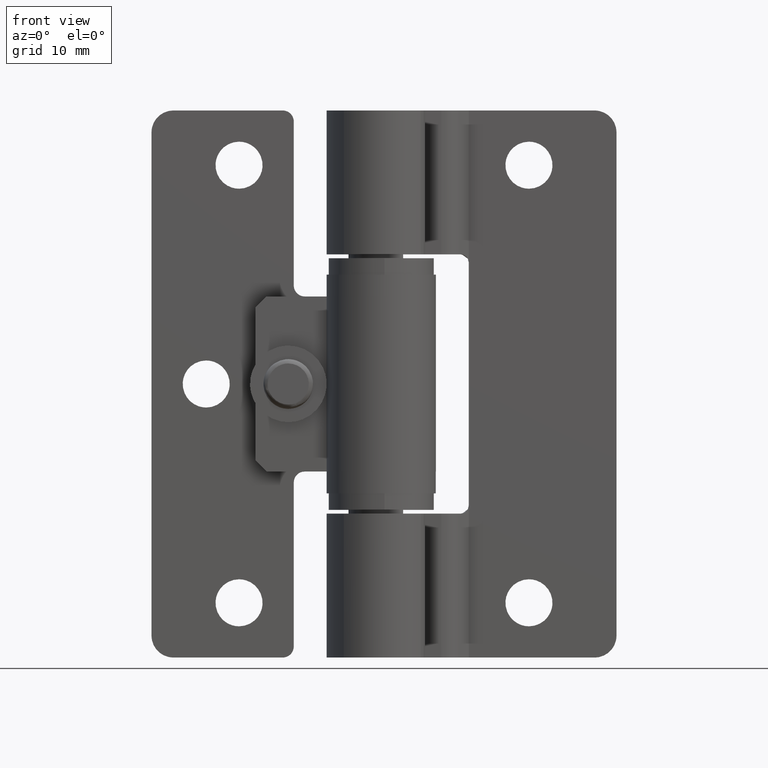
[diagram: clean part render]
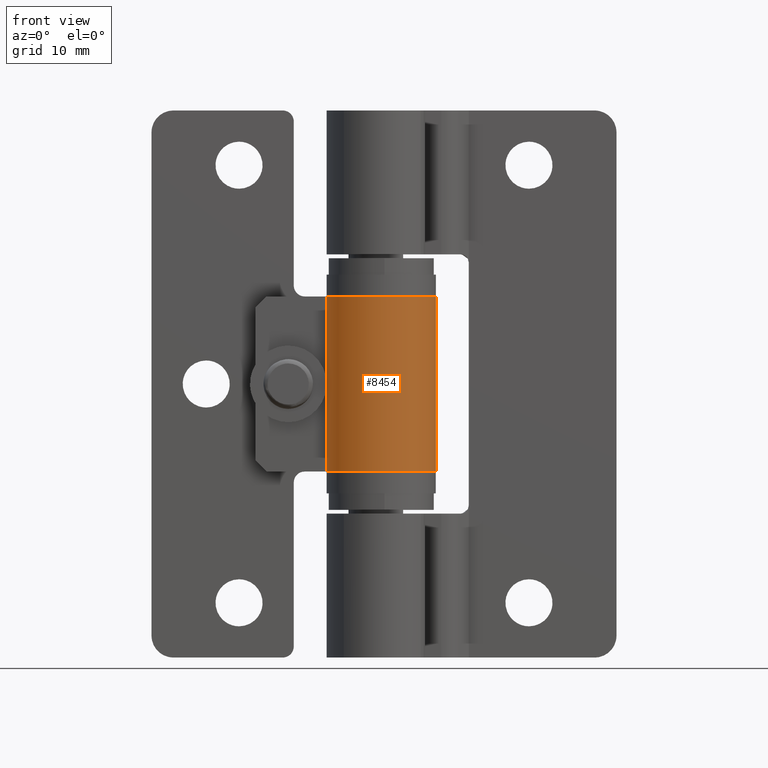
[diagram: same view with one face highlighted and labeled with its STEP entity id]
A machine part, front view. The second image highlights one B-rep face of the part: STEP entity #8454.
In plain terms, the highlighted face is a freeform B-spline surface patch.
Its self-contained STEP definition (entity closure, byte-faithful):
#8118=CARTESIAN_POINT('',(0.0,5.0,33.0));
#8119=VERTEX_POINT('',#8118);
#8160=CARTESIAN_POINT('',(-5.0,0.0,33.0));
#8161=VERTEX_POINT('',#8160);
#8167=CARTESIAN_POINT('',(0.0,5.0,33.0));
#8168=CARTESIAN_POINT('',(5.000000000000001,5.000000000000001,33.0));
#8169=CARTESIAN_POINT('',(5.0,0.0,33.0));
#8170=CARTESIAN_POINT('',(5.000000000000001,-5.000000000000001,33.0));
#8171=CARTESIAN_POINT('',(0.0,-5.0,33.0));
#8172=CARTESIAN_POINT('',(-5.000000000000001,-5.000000000000001,33.0));
#8173=CARTESIAN_POINT('',(-5.0,0.0,33.0));
#8181=(BOUNDED_CURVE()B_SPLINE_CURVE(2,(#8167,#8168,#8169,#8170,#8171,#8172,#8173),.UNSPECIFIED.,.F.,.U.)B_SPLINE_CURVE_WITH_KNOTS((3,2,2,3),(0.0,0.333333333333333,0.666666666666667,1.0),.UNSPECIFIED.)CURVE()GEOMETRIC_REPRESENTATION_ITEM()RATIONAL_B_SPLINE_CURVE((1.0,0.707106781186548,1.0,0.707106781186548,1.0,0.707106781186548,1.0))REPRESENTATION_ITEM(''));
#8182=EDGE_CURVE('',#8119,#8161,#8181,.T.);
#8192=CARTESIAN_POINT('',(-5.0,0.0,17.0));
#8193=VERTEX_POINT('',#8192);
#8234=CARTESIAN_POINT('',(0.0,5.0,17.0));
#8235=VERTEX_POINT('',#8234);
#8241=CARTESIAN_POINT('',(0.0,5.0,17.0));
#8242=CARTESIAN_POINT('',(5.000000000000001,5.000000000000001,17.000000000000004));
#8243=CARTESIAN_POINT('',(5.0,0.0,17.0));
#8244=CARTESIAN_POINT('',(5.000000000000001,-5.000000000000001,17.000000000000004));
#8245=CARTESIAN_POINT('',(0.0,-5.0,17.0));
#8246=CARTESIAN_POINT('',(-5.000000000000001,-5.000000000000001,17.000000000000004));
#8247=CARTESIAN_POINT('',(-5.0,0.0,17.0));
#8255=(BOUNDED_CURVE()B_SPLINE_CURVE(2,(#8241,#8242,#8243,#8244,#8245,#8246,#8247),.UNSPECIFIED.,.F.,.U.)B_SPLINE_CURVE_WITH_KNOTS((3,2,2,3),(0.0,0.333333333333333,0.666666666666667,1.0),.UNSPECIFIED.)CURVE()GEOMETRIC_REPRESENTATION_ITEM()RATIONAL_B_SPLINE_CURVE((1.0,0.707106781186548,1.0,0.707106781186548,1.0,0.707106781186548,1.0))REPRESENTATION_ITEM(''));
#8256=EDGE_CURVE('',#8235,#8193,#8255,.T.);
#8275=CARTESIAN_POINT('',(0.0,5.0,17.0));
#8276=CARTESIAN_POINT('',(0.0,5.0,33.0));
#8277=QUASI_UNIFORM_CURVE('',1,(#8275,#8276),.UNSPECIFIED.,.F.,.U.);
#8278=EDGE_CURVE('',#8235,#8119,#8277,.T.);
#8410=CARTESIAN_POINT('',(-5.0,0.0,17.0));
#8411=CARTESIAN_POINT('',(-5.0,0.0,33.0));
#8412=QUASI_UNIFORM_CURVE('',1,(#8410,#8411),.UNSPECIFIED.,.F.,.U.);
#8413=EDGE_CURVE('',#8193,#8161,#8412,.T.);
#8426=CARTESIAN_POINT('',(-0.043632677491865,4.999809615320855,16.600000000000001));
#8427=CARTESIAN_POINT('',(-0.043632677491865,4.999809615320855,33.409999999999997));
#8428=CARTESIAN_POINT('',(5.073902907545544,5.044469671785975,16.599999999999998));
#8429=CARTESIAN_POINT('',(5.073902907545544,5.044469671785975,33.409999999999997));
#8430=CARTESIAN_POINT('',(4.999471159635536,-0.072719488257917,16.600000000000001));
#8431=CARTESIAN_POINT('',(4.999471159635536,-0.072719488257917,33.409999999999997));
#8432=CARTESIAN_POINT('',(4.925039411725527,-5.189908648301809,16.599999999999998));
#8433=CARTESIAN_POINT('',(4.925039411725527,-5.189908648301809,33.409999999999997));
#8434=CARTESIAN_POINT('',(-0.189032275121957,-4.996425402121220,16.600000000000001));
#8435=CARTESIAN_POINT('',(-0.189032275121957,-4.996425402121220,33.409999999999997));
#8436=CARTESIAN_POINT('',(-5.303103961969442,-4.802942155940633,16.599999999999998));
#8437=CARTESIAN_POINT('',(-5.303103961969442,-4.802942155940633,33.409999999999997));
#8438=CARTESIAN_POINT('',(-4.990673992109334,0.305242697674286,16.600000000000001));
#8439=CARTESIAN_POINT('',(-4.990673992109334,0.305242697674286,33.409999999999997));
#8447=(BOUNDED_SURFACE()B_SPLINE_SURFACE(1,2,((#8426,#8428,#8430,#8432,#8434,#8436,#8438),(#8427,#8429,#8431,#8433,#8435,#8437,#8439)),.UNSPECIFIED.,.F.,.F.,.U.)B_SPLINE_SURFACE_WITH_KNOTS((2,2),(3,2,2,3),(0.0,16.809999999999999),(0.0,8.420920780775573,16.841841561551149,25.262762342326720),.UNSPECIFIED.)GEOMETRIC_REPRESENTATION_ITEM()RATIONAL_B_SPLINE_SURFACE(((1.0,0.698831540367900,1.0,0.698831540367900,1.0,0.698831540367900,1.0),(1.0,0.698831540367900,1.0,0.698831540367900,1.0,0.698831540367900,1.0)))REPRESENTATION_ITEM('')SURFACE());
#8448=ORIENTED_EDGE('',*,*,#8182,.T.);
#8449=ORIENTED_EDGE('',*,*,#8413,.F.);
#8450=ORIENTED_EDGE('',*,*,#8256,.F.);
#8451=ORIENTED_EDGE('',*,*,#8278,.T.);
#8452=EDGE_LOOP('',(#8448,#8449,#8450,#8451));
#8453=FACE_OUTER_BOUND('',#8452,.T.);
#8454=ADVANCED_FACE('',(#8453),#8447,.T.);